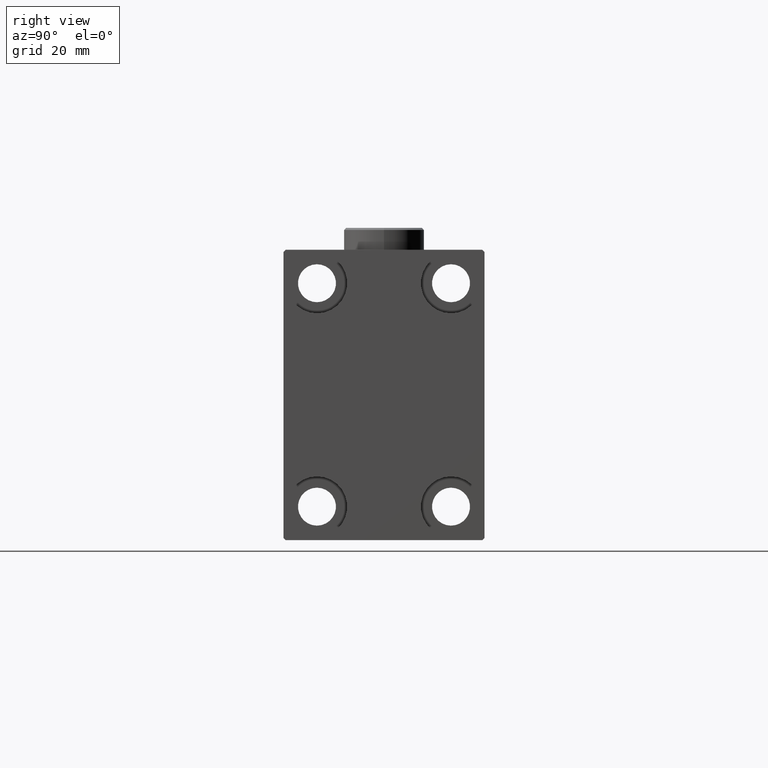
[diagram: clean part render]
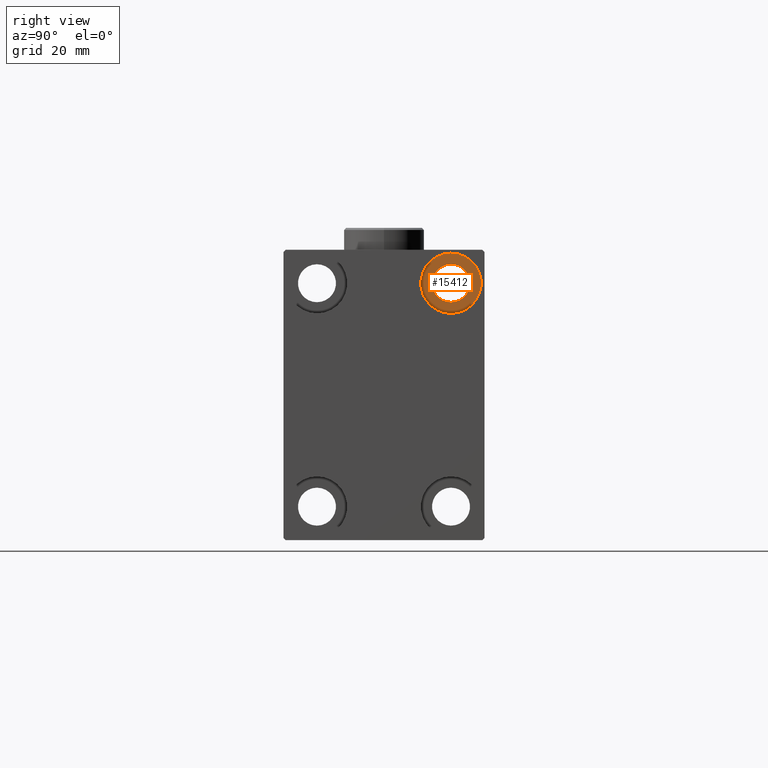
[diagram: same view with one face highlighted and labeled with its STEP entity id]
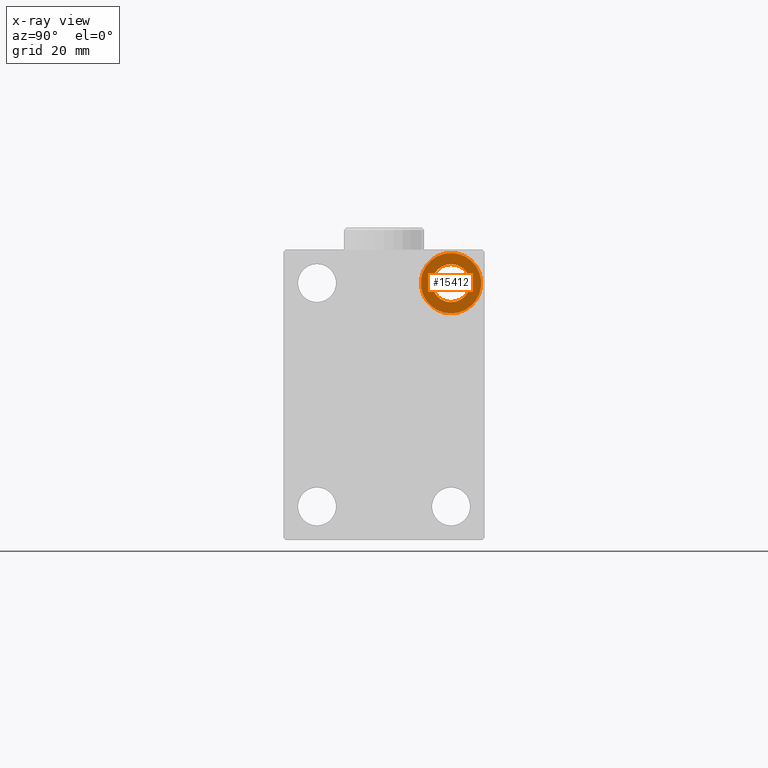
[diagram: x-ray of the same camera — body ghosted, the highlighted face saturated]
A machine part, right view. The second image highlights one B-rep face of the part: STEP entity #15412.
The next image is the same camera in x-ray: the body ghosted, the highlighted face saturated — about 0% of this face is hidden behind the body in this view.
In plain terms, the highlighted planar face has unit normal (1, 0, 0).
Its self-contained STEP definition (entity closure, byte-faithful):
#1083 = EDGE_CURVE ( 'NONE', #43710, #36076, #30127, .T. ) ;
#3601 = CARTESIAN_POINT ( 'NONE',  ( 121.0000000000000142, 15.00000000000000355, 25.00000000000000000 ) ) ;
#4309 = CIRCLE ( 'NONE', #8703, 4.249999999999996447 ) ;
#5930 = EDGE_CURVE ( 'NONE', #36076, #43710, #14763, .T. ) ;
#6205 = ORIENTED_EDGE ( 'NONE', *, *, #28384, .T. ) ;
#8692 = ORIENTED_EDGE ( 'NONE', *, *, #1083, .F. ) ;
#8703 = AXIS2_PLACEMENT_3D ( 'NONE', #28672, #38488, #10588 ) ;
#9253 = DIRECTION ( 'NONE',  ( 0.000000000000000000, 0.000000000000000000, 1.000000000000000000 ) ) ;
#9676 = DIRECTION ( 'NONE',  ( 0.000000000000000000, 0.000000000000000000, 1.000000000000000000 ) ) ;
#10588 = DIRECTION ( 'NONE',  ( 0.000000000000000000, 0.000000000000000000, -1.000000000000000000 ) ) ;
#12260 = CARTESIAN_POINT ( 'NONE',  ( 121.0000000000000142, 15.00000000000000355, 20.75000000000000355 ) ) ;
#12658 = CARTESIAN_POINT ( 'NONE',  ( 121.0000000000000142, 15.00000000000000355, 18.25000000000000355 ) ) ;
#12887 = DIRECTION ( 'NONE',  ( 1.000000000000000000, 0.000000000000000000, -0.000000000000000000 ) ) ;
#14763 = CIRCLE ( 'NONE', #20614, 6.749999999999999112 ) ;
#15412 = ADVANCED_FACE ( 'NONE', ( #43755, #23873 ), #27087, .T. ) ;
#17347 = DIRECTION ( 'NONE',  ( -1.000000000000000000, -0.000000000000000000, -0.000000000000000000 ) ) ;
#19029 = VERTEX_POINT ( 'NONE', #12260 ) ;
#20614 = AXIS2_PLACEMENT_3D ( 'NONE', #30212, #39586, #40047 ) ;
#22312 = CARTESIAN_POINT ( 'NONE',  ( 121.0000000000000142, 15.00000000000000355, 29.25000000000000000 ) ) ;
#23804 = CIRCLE ( 'NONE', #35461, 4.249999999999996447 ) ;
#23873 = FACE_BOUND ( 'NONE', #38340, .T. ) ;
#24221 = DIRECTION ( 'NONE',  ( 0.000000000000000000, 0.000000000000000000, -1.000000000000000000 ) ) ;
#26674 = ORIENTED_EDGE ( 'NONE', *, *, #5930, .F. ) ;
#27087 = PLANE ( 'NONE',  #36726 ) ;
#27106 = CARTESIAN_POINT ( 'NONE',  ( 121.0000000000000142, 15.00000000000000355, 25.00000000000000000 ) ) ;
#28384 = EDGE_CURVE ( 'NONE', #19029, #28839, #23804, .T. ) ;
#28672 = CARTESIAN_POINT ( 'NONE',  ( 121.0000000000000142, 15.00000000000000355, 25.00000000000000000 ) ) ;
#28839 = VERTEX_POINT ( 'NONE', #22312 ) ;
#30127 = CIRCLE ( 'NONE', #33036, 6.749999999999999112 ) ;
#30212 = CARTESIAN_POINT ( 'NONE',  ( 121.0000000000000142, 15.00000000000000355, 25.00000000000000000 ) ) ;
#30689 = EDGE_LOOP ( 'NONE', ( #8692, #26674 ) ) ;
#30968 = DIRECTION ( 'NONE',  ( -1.000000000000000000, -0.000000000000000000, -0.000000000000000000 ) ) ;
#33036 = AXIS2_PLACEMENT_3D ( 'NONE', #27106, #30968, #9253 ) ;
#35461 = AXIS2_PLACEMENT_3D ( 'NONE', #3601, #17347, #24221 ) ;
#36076 = VERTEX_POINT ( 'NONE', #37358 ) ;
#36726 = AXIS2_PLACEMENT_3D ( 'NONE', #36902, #12887, #9676 ) ;
#36902 = CARTESIAN_POINT ( 'NONE',  ( 121.0000000000000142, 0.000000000000000000, 0.000000000000000000 ) ) ;
#37358 = CARTESIAN_POINT ( 'NONE',  ( 121.0000000000000142, 15.00000000000000355, 31.75000000000000000 ) ) ;
#37822 = EDGE_CURVE ( 'NONE', #28839, #19029, #4309, .T. ) ;
#38340 = EDGE_LOOP ( 'NONE', ( #41308, #6205 ) ) ;
#38488 = DIRECTION ( 'NONE',  ( -1.000000000000000000, -0.000000000000000000, -0.000000000000000000 ) ) ;
#39586 = DIRECTION ( 'NONE',  ( -1.000000000000000000, -0.000000000000000000, -0.000000000000000000 ) ) ;
#40047 = DIRECTION ( 'NONE',  ( 0.000000000000000000, 0.000000000000000000, 1.000000000000000000 ) ) ;
#41308 = ORIENTED_EDGE ( 'NONE', *, *, #37822, .T. ) ;
#43710 = VERTEX_POINT ( 'NONE', #12658 ) ;
#43755 = FACE_OUTER_BOUND ( 'NONE', #30689, .T. ) ;